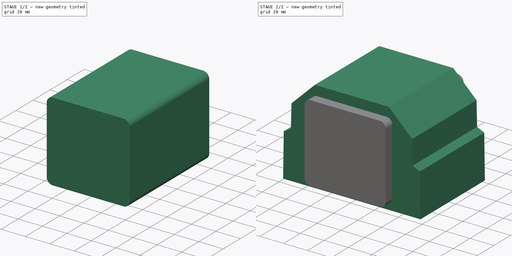
[diagram: build sequence overview — one tinted view per stage of 2, left to right]
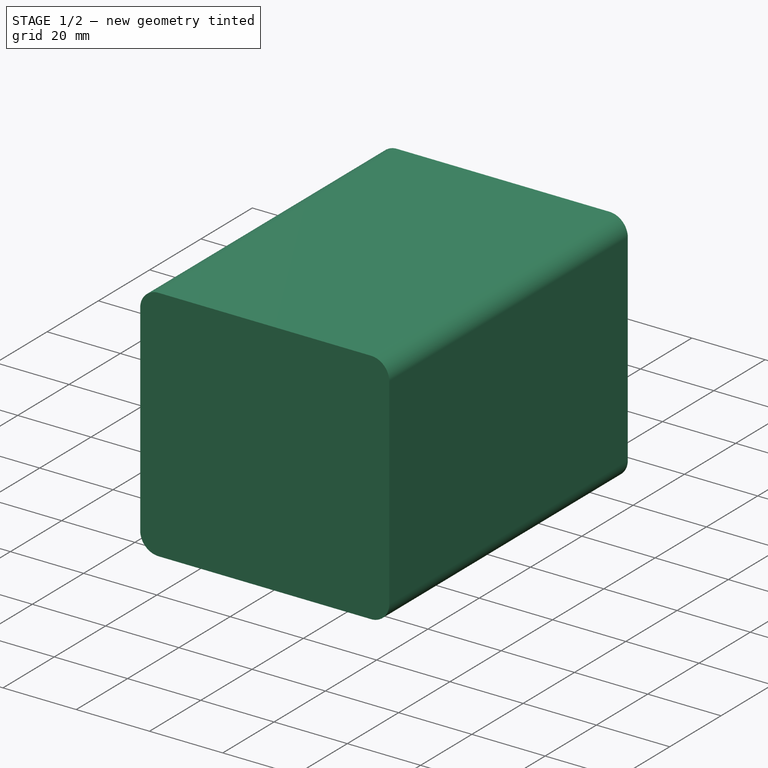
[diagram: stage 1 of 2 — iso view after this stage's code; geometry added in this stage tinted green]
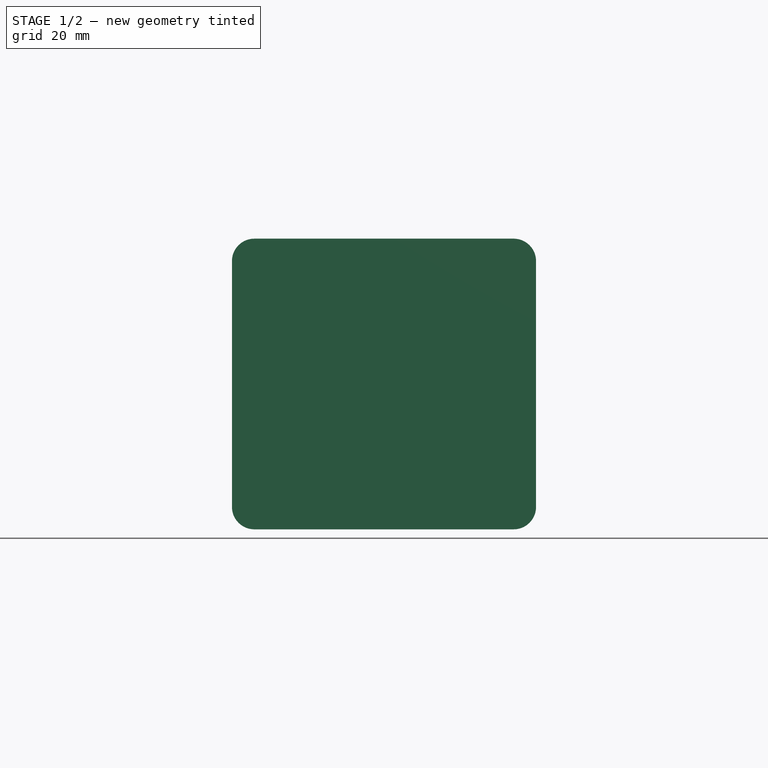
[diagram: stage 1 of 2 — front view after this stage's code; geometry added in this stage tinted green]
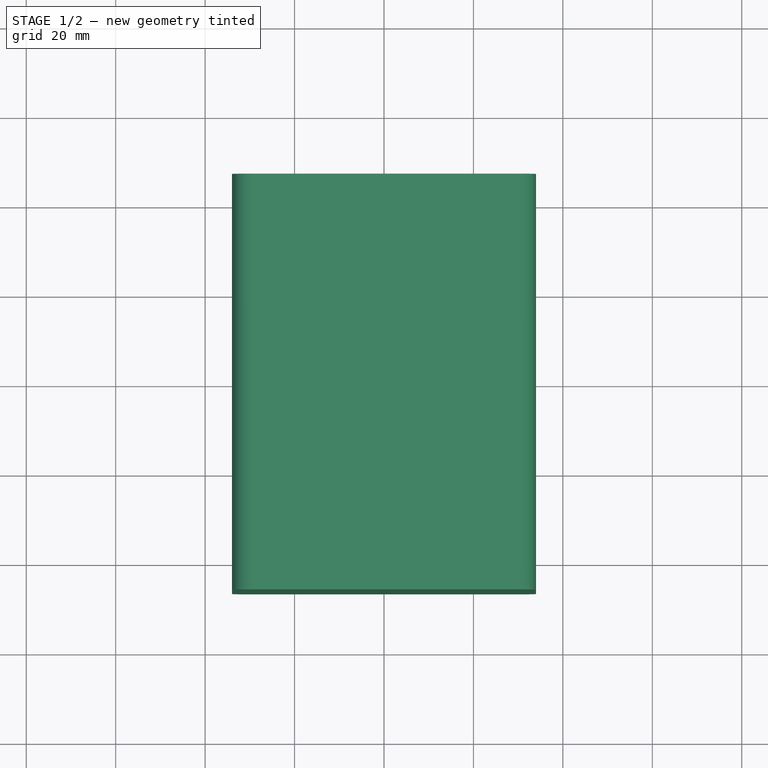
[diagram: stage 1 of 2 — top view after this stage's code; geometry added in this stage tinted green]
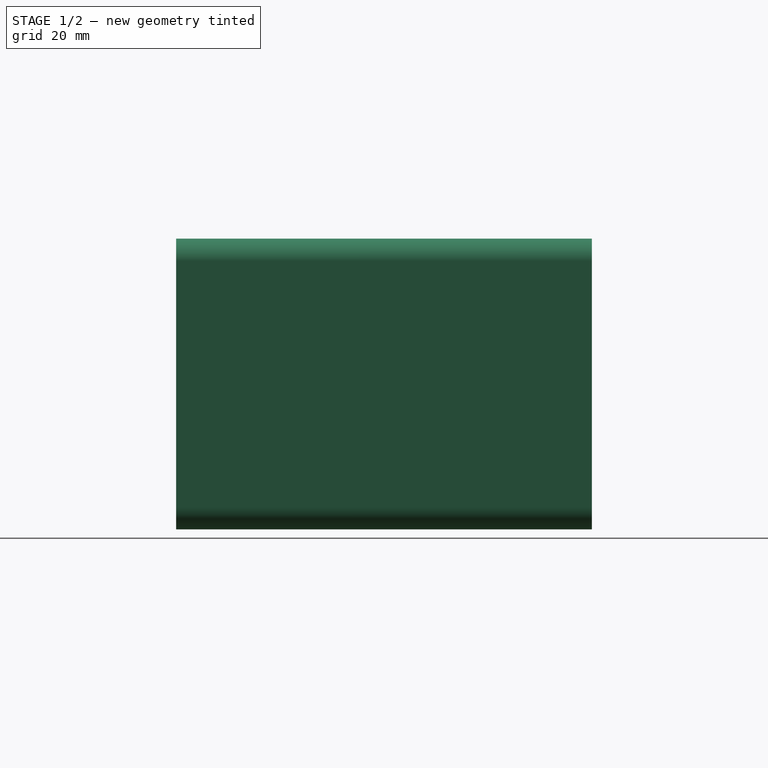
[diagram: stage 1 of 2 — right view after this stage's code; geometry added in this stage tinted green]
FCSTD DOCUMENT  (FreeCAD 1.0R39109 (Git))
Label: air-assist
License: All rights reserved
LicenseURL: http://en.wikipedia.org/wiki/All_rights_reserved
objects: Sketcher::SketchObject×2, PartDesign::Pad×2, PartDesign::Body×2, App::Part×1
note: 12 computed .brp shape members not serialized (recipe doc carries the construction recipe); baked Part::Feature solids carry a one-line shape summary decoded from their .brp

FEATURE [PartDesign::Body] Body
  AllowCompound = false
  Group = -> [Sketch,Pad]
  Origin = -> Origin
  Tip = -> Pad
FEATURE [Sketcher::SketchObject] Sketch003
  ArcFitTolerance = 0
  FullyConstrained = true
  MakeInternals = false
  MapMode = 5
  Placement = pos=(0,0,0) rot=(1,0,0;1.5708rad)
  sketch-geometry (8):
    g0: LineSegment StartX=29 StartY=5 StartZ=0 EndX=-29 EndY=5 EndZ=0
    g1: LineSegment StartX=-34 StartY=10 StartZ=0 EndX=-34 EndY=65 EndZ=0
    g2: LineSegment StartX=-29 StartY=70 StartZ=0 EndX=29 EndY=70 EndZ=0
    g3: LineSegment StartX=34 StartY=65 StartZ=0 EndX=34 EndY=10 EndZ=0
    g4: ArcOfCircle CenterX=-29 CenterY=65 CenterZ=0 NormalX=0 NormalY=0 NormalZ=1 AngleXU=0 Radius=5 StartAngle=1.5708 EndAngle=3.14159
    g5: ArcOfCircle CenterX=-29 CenterY=10 CenterZ=0 NormalX=0 NormalY=0 NormalZ=1 AngleXU=0 Radius=5 StartAngle=3.14159 EndAngle=4.71239
    g6: ArcOfCircle CenterX=29 CenterY=10 CenterZ=0 NormalX=0 NormalY=0 NormalZ=1 AngleXU=0 Radius=5 StartAngle=4.71239 EndAngle=6.28319
    g7: ArcOfCircle CenterX=29 CenterY=65 CenterZ=0 NormalX=0 NormalY=0 NormalZ=1 AngleXU=0 Radius=5 StartAngle=6e-16 EndAngle=1.5708
  constraints (19):
    c: Horizontal(g0)
    c: Horizontal(g2)
    c: Vertical(g1)
    c: Vertical(g3)
    c: Tangent(g2,g4) = 1.5708
    c: Tangent(g1,g4) = 1.5708
    c: Tangent(g1,g5) = 1.5708
    c: Tangent(g0,g5) = 1.5708
    c: Tangent(g0,g6) = 1.5708
    c: Tangent(g3,g6) = 1.5708
    c: Tangent(g3,g7) = 1.5708
    c: Tangent(g2,g7) = 1.5708
    c: Equal(g7,g5)
    c: Equal(g7,g6)
    c: Radius(g7) = 5
    c: DistanceX(g1,g3) = 68
    c: DistanceY(g0,g2) = 65
    c: Symmetric(g1,g3,g-2)
    c: DistanceY(g-1,g0) = 5
FEATURE [PartDesign::Pad] Pad003
  Direction = (0,-1,2e-16)
  Length = 93
  Length2 = 10
  Midplane = true
  Placement = pos=(0,0,0) rot=(1,0,0;1.5708rad)
  Profile = -> Sketch003
  ReferenceAxis = -> Sketch003 [N_Axis]
  Suppressed = false
  Type = 0
FEATURE [PartDesign::Body] Body001
  AllowCompound = false
  Group = -> [Sketch003,Pad003]
  Origin = -> Origin001
  Tip = -> Pad003
FEATURE [App::Part] Part  label="air-assist"
  Group = -> [Body,Body001]
  Origin = -> Origin002
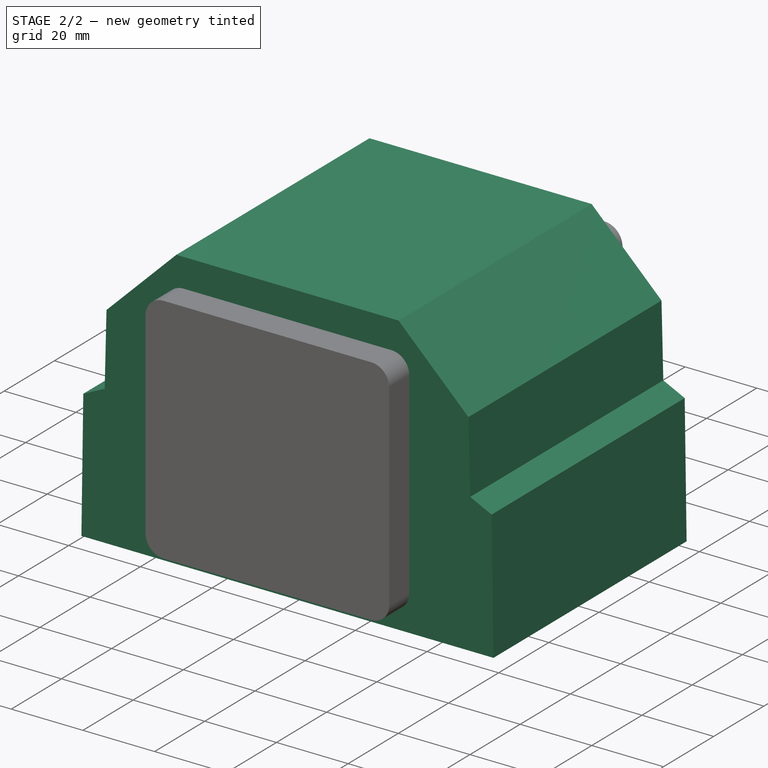
[diagram: stage 2 of 2 — iso view after this stage's code; geometry added in this stage tinted green]
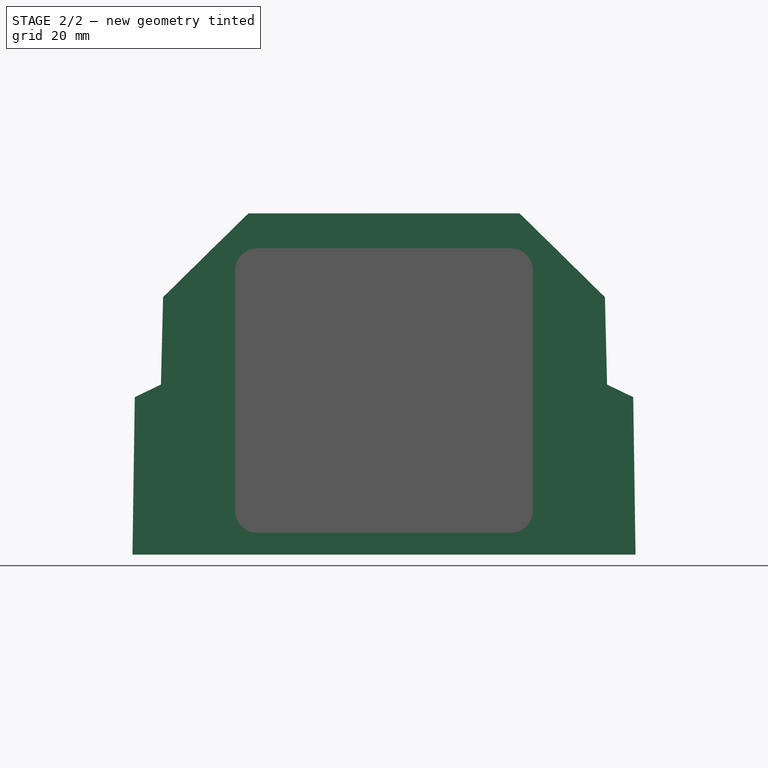
[diagram: stage 2 of 2 — front view after this stage's code; geometry added in this stage tinted green]
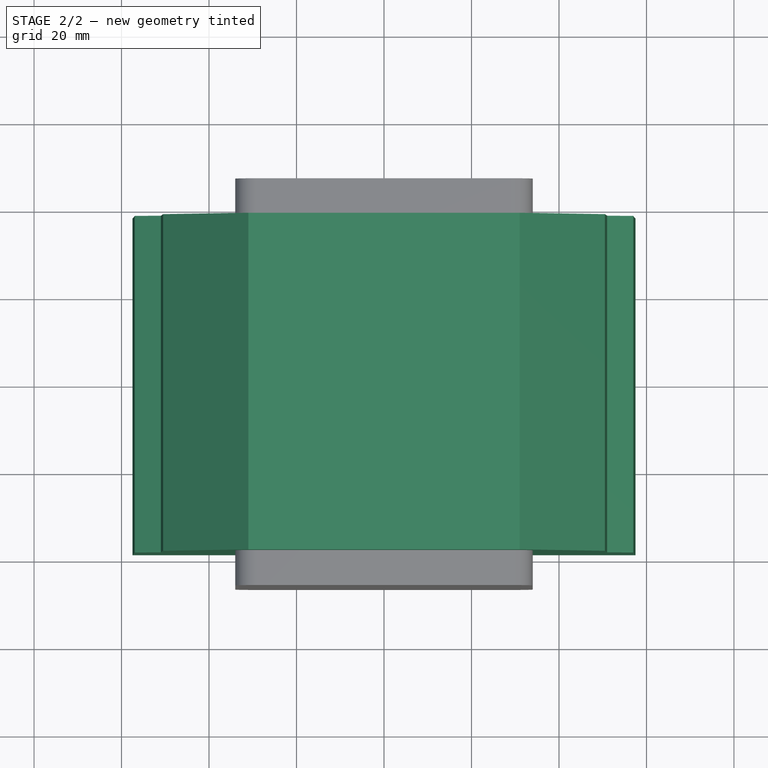
[diagram: stage 2 of 2 — top view after this stage's code; geometry added in this stage tinted green]
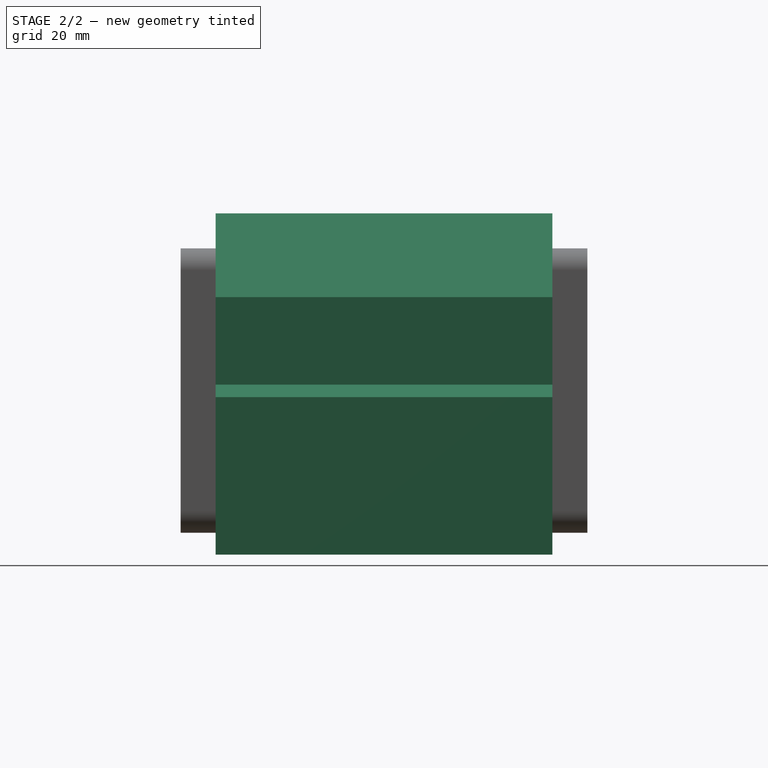
[diagram: stage 2 of 2 — right view after this stage's code; geometry added in this stage tinted green]
FEATURE [Sketcher::SketchObject] Sketch
  ArcFitTolerance = 0
  AttachmentSupport = -> [XZ_Plane]
  FullyConstrained = true
  MakeInternals = false
  MapMode = 5
  Placement = pos=(0,0,0) rot=(1,0,0;1.5708rad)
  sketch-geometry (10):
    g0: LineSegment StartX=-57.5 StartY=0 StartZ=0 EndX=-56.9739 EndY=35.9962 EndZ=0
    g1: LineSegment StartX=-56.9739 StartY=35.9962 StartZ=0 EndX=-51 EndY=38.8705 EndZ=0
    g2: LineSegment StartX=-51 StartY=38.8705 StartZ=0 EndX=-50.5 EndY=58.8643 EndZ=0
    g3: LineSegment StartX=-50.5 StartY=58.8643 StartZ=0 EndX=-31 EndY=78 EndZ=0
    g4: LineSegment StartX=-31 StartY=78 StartZ=0 EndX=31 EndY=78 EndZ=0
    g5: LineSegment StartX=31 StartY=78 StartZ=0 EndX=50.5 EndY=58.8643 EndZ=0
    g6: LineSegment StartX=50.5 StartY=58.8643 StartZ=0 EndX=51 EndY=38.8705 EndZ=0
    g7: LineSegment StartX=51 StartY=38.8705 StartZ=0 EndX=56.9739 EndY=35.9962 EndZ=0
    g8: LineSegment StartX=56.9739 StartY=35.9962 StartZ=0 EndX=57.5 EndY=0 EndZ=0
    g9: LineSegment StartX=57.5 StartY=0 StartZ=0 EndX=-57.5 EndY=0 EndZ=0
  constraints (25):
    c: PointOnObject(g0,g-1)
    c: Coincident(g0,g1)
    c: Coincident(g1,g2)
    c: Coincident(g2,g3)
    c: Coincident(g3,g4)
    c: Coincident(g4,g5)
    c: Coincident(g5,g6)
    c: Coincident(g6,g7)
    c: Coincident(g7,g8)
    c: Coincident(g8,g9)
    c: Coincident(g9,g0)
    c: Symmetric(g0,g8,g-2)
    c: DistanceX(g9,g9) = 115
    c: Symmetric(g1,g6,g-2)
    c: Symmetric(g3,g4,g-2)
    c: Symmetric(g2,g5,g-2)
    c: Symmetric(g0,g7,g-2)
    c: Distance(g8) = 36
    c: DistanceX(g4,g4) = 62
    c: DistanceX(g2,g5) = 101
    c: DistanceX(g1,g6) = 102
    c: Distance(g0,g8) = 120
    c: DistanceY(g0,g3) = 78
    c: Distance(g2,g8) = 123
    c: Distance(g6) = 20
FEATURE [PartDesign::Pad] Pad
  Direction = (0,-1,2e-16)
  Length = 76.962
  Length2 = 10
  Midplane = true
  Placement = pos=(0,0,0) rot=(1,0,0;1.5708rad)
  Profile = -> Sketch
  ReferenceAxis = -> Sketch [N_Axis]
  Suppressed = false
  Type = 0
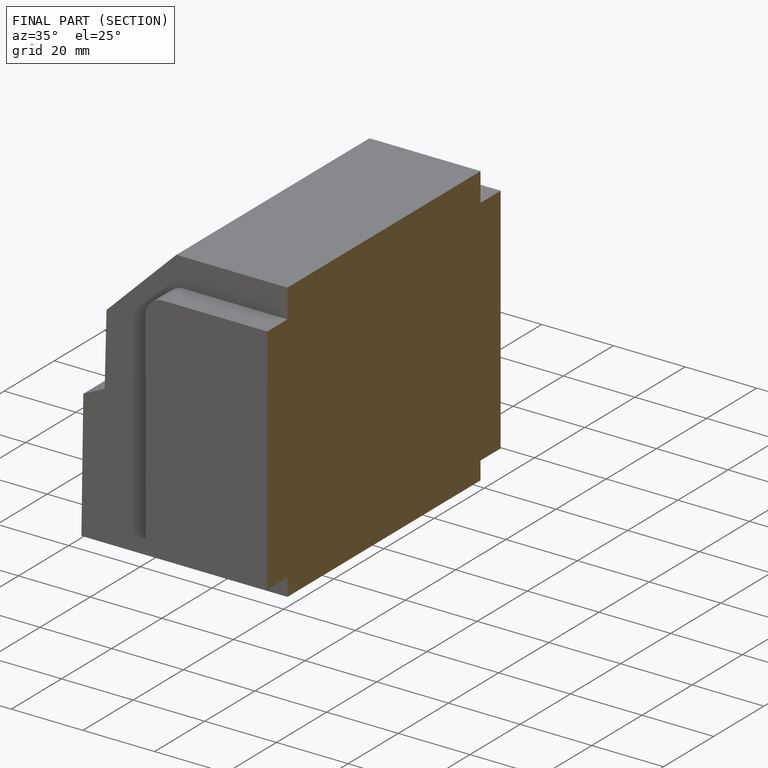
[diagram: finished part — half-section view (interior)]
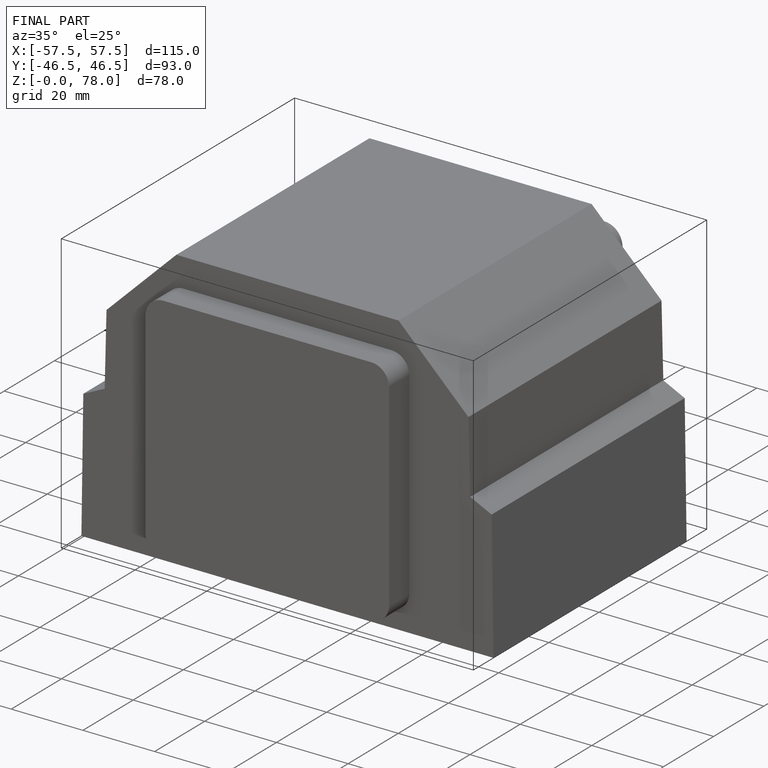
[diagram: finished part — iso view with bounding-box wireframe]
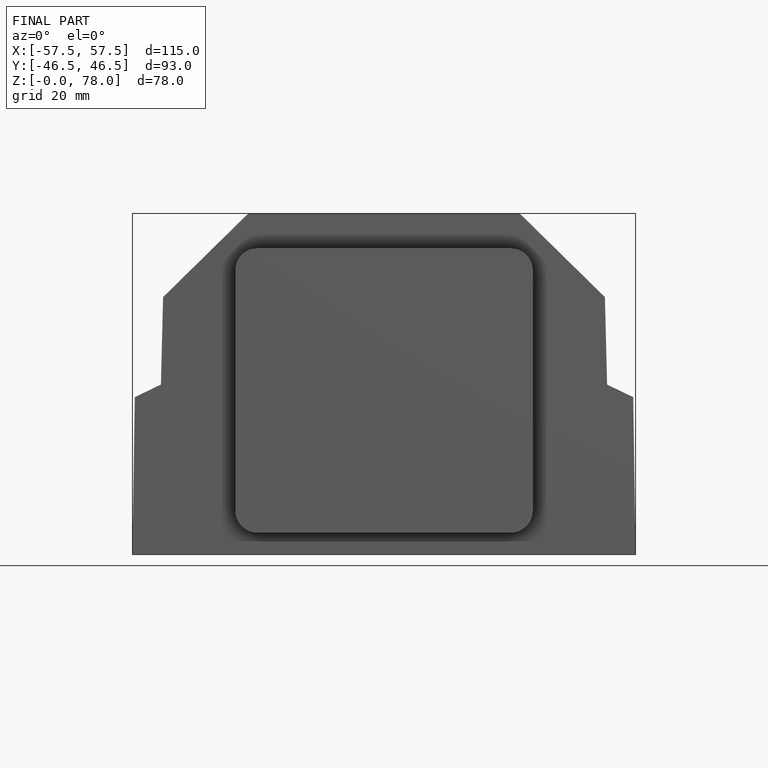
[diagram: finished part — front view with bounding-box wireframe]
